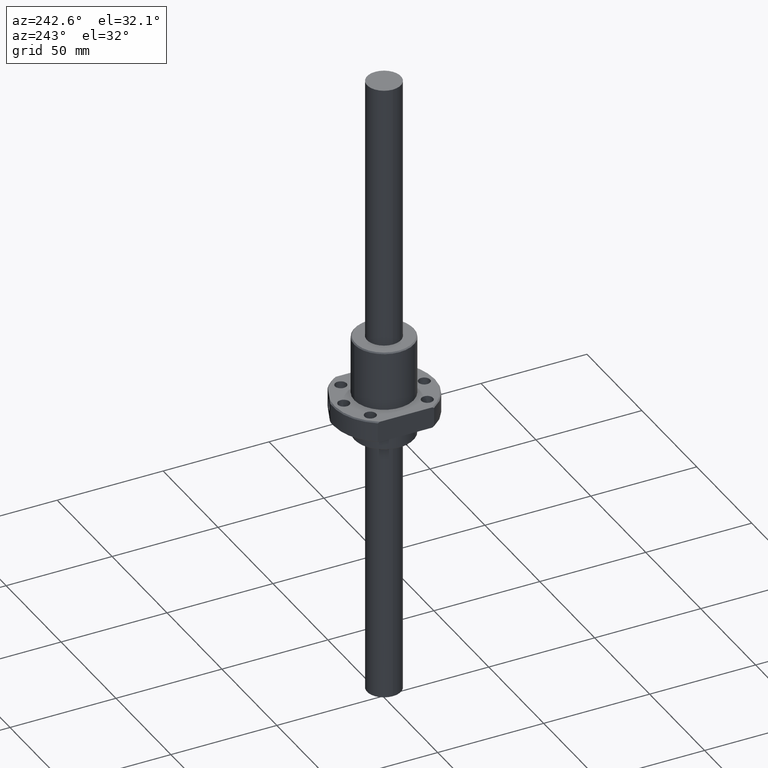
[diagram: clean part render]
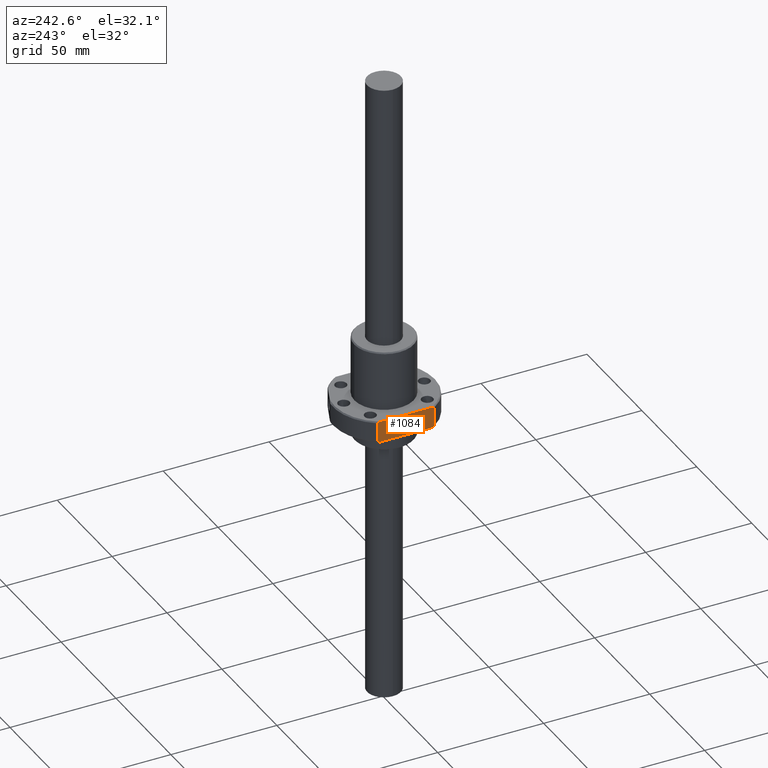
[diagram: same view with one face highlighted and labeled with its STEP entity id]
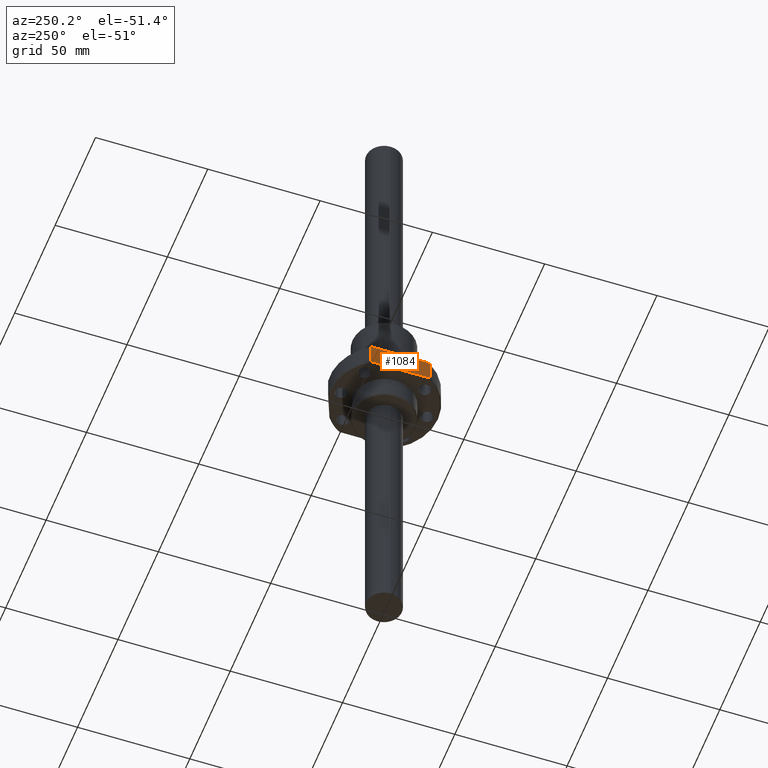
[diagram: same view with one face highlighted and labeled with its STEP entity id]
A machine part, auxiliary view. The second image highlights one B-rep face of the part: STEP entity #1084.
A second angle (auxiliary view) of the same face is appended — the face is thin or edge-on in the first view.
In plain terms, the highlighted planar face has unit normal (-1, 0, 0).
Its self-contained STEP definition (entity closure, byte-faithful):
#8 = CARTESIAN_POINT ( 'NONE',  ( 20.00000000000000000, 0.0000000000000000000, -10.00000000000000000 ) ) ;
#30 = CARTESIAN_POINT ( 'NONE',  ( 20.00000000000000000, 12.33896267925307400, -10.00000000000000500 ) ) ;
#32 = EDGE_CURVE ( 'NONE', #1040, #477, #833, .T. ) ;
#39 = DIRECTION ( 'NONE',  ( -0.0000000000000000000, -0.0000000000000000000, -1.000000000000000000 ) ) ;
#54 = CARTESIAN_POINT ( 'NONE',  ( 20.00000000000000000, 12.33896268198936000, -19.99999999856327500 ) ) ;
#77 = CARTESIAN_POINT ( 'NONE',  ( 20.00000000606479100, 13.26649915227858200, -15.00000000000000000 ) ) ;
#99 = DIRECTION ( 'NONE',  ( -0.0000000000000000000, -1.000000000000000000, -0.0000000000000000000 ) ) ;
#117 = B_SPLINE_CURVE_WITH_KNOTS ( 'NONE', 3,
 ( #235, #1030, #1791, #30 ),
 .UNSPECIFIED., .F., .F.,
 ( 4, 4 ),
 ( 2.274645919796704600E-012, 0.001053719078582877900 ),
 .UNSPECIFIED. ) ;
#133 = CARTESIAN_POINT ( 'NONE',  ( 20.00000000087938500, -12.95908056561997200, -19.66993202312919200 ) ) ;
#182 = LINE ( 'NONE', #77, #910 ) ;
#183 = EDGE_CURVE ( 'NONE', #1237, #1040, #117, .T. ) ;
#213 = ORIENTED_EDGE ( 'NONE', *, *, #1806, .T. ) ;
#229 = EDGE_CURVE ( 'NONE', #477, #950, #709, .T. ) ;
#235 = CARTESIAN_POINT ( 'NONE',  ( 20.00000000303239700, 13.26649915531293000, -10.49999999915030300 ) ) ;
#248 = VERTEX_POINT ( 'NONE', #1051 ) ;
#283 = CARTESIAN_POINT ( 'NONE',  ( 20.00000000000000000, 12.33896268198936000, -19.99999999856327500 ) ) ;
#331 = FACE_OUTER_BOUND ( 'NONE', #526, .T. ) ;
#333 = CARTESIAN_POINT ( 'NONE',  ( 20.00000000000000000, -13.26649916006705300, -19.50000000063226900 ) ) ;
#347 = DIRECTION ( 'NONE',  ( 1.000000000000000000, 0.0000000000000000000, 0.0000000000000000000 ) ) ;
#435 = CARTESIAN_POINT ( 'NONE',  ( 20.00000000000000000, -13.26649916121060700, -10.49999999988334500 ) ) ;
#477 = VERTEX_POINT ( 'NONE', #1468 ) ;
#526 = EDGE_LOOP ( 'NONE', ( #1876, #1323, #901, #1521, #558, #213, #1770, #1412 ) ) ;
#558 = ORIENTED_EDGE ( 'NONE', *, *, #229, .T. ) ;
#586 = CARTESIAN_POINT ( 'NONE',  ( 20.00000000000000000, -13.26649916100000000, -15.00000000000000000 ) ) ;
#634 = EDGE_CURVE ( 'NONE', #248, #856, #1611, .T. ) ;
#643 = VERTEX_POINT ( 'NONE', #283 ) ;
#709 = B_SPLINE_CURVE_WITH_KNOTS ( 'NONE', 3,
 ( #1904, #1497, #1357, #1152 ),
 .UNSPECIFIED., .F., .F.,
 ( 4, 4 ),
 ( 0.0000000000000000000, 0.001053719080662776000 ),
 .UNSPECIFIED. ) ;
#736 = DIRECTION ( 'NONE',  ( 0.0000000000000000000, 1.000000000000000000, 0.0000000000000000000 ) ) ;
#770 = EDGE_CURVE ( 'NONE', #643, #1591, #1907, .T. ) ;
#833 = LINE ( 'NONE', #8, #1475 ) ;
#856 = VERTEX_POINT ( 'NONE', #1043 ) ;
#884 = CARTESIAN_POINT ( 'NONE',  ( 20.00000000303239700, 13.26649915531293000, -10.49999999915030300 ) ) ;
#901 = ORIENTED_EDGE ( 'NONE', *, *, #183, .T. ) ;
#905 = CARTESIAN_POINT ( 'NONE',  ( 20.00000000303239700, 13.26649915685009000, -19.50000000000003900 ) ) ;
#910 = VECTOR ( 'NONE', #1258, 1000.000000000000000 ) ;
#950 = VERTEX_POINT ( 'NONE', #435 ) ;
#1030 = CARTESIAN_POINT ( 'NONE',  ( 20.00000000127564100, 12.95908056669486500, -10.33006797724327400 ) ) ;
#1040 = VERTEX_POINT ( 'NONE', #1382 ) ;
#1043 = CARTESIAN_POINT ( 'NONE',  ( 20.00000000000000000, -12.33896268255248300, -19.99999999826760100 ) ) ;
#1051 = CARTESIAN_POINT ( 'NONE',  ( 20.00000000000000000, -13.26649916006705300, -19.50000000063226900 ) ) ;
#1079 = CARTESIAN_POINT ( 'NONE',  ( 20.00000000000000000, -13.26649916100000000, -20.00000000000000000 ) ) ;
#1081 = LINE ( 'NONE', #586, #1324 ) ;
#1084 = ADVANCED_FACE ( 'NONE', ( #331 ), #1492, .T. ) ;
#1152 = CARTESIAN_POINT ( 'NONE',  ( 20.00000000000000000, -13.26649916121060700, -10.49999999988334500 ) ) ;
#1159 = DIRECTION ( 'NONE',  ( -0.0000000000000000000, -1.000000000000000000, -0.0000000000000000000 ) ) ;
#1167 = LINE ( 'NONE', #1363, #1267 ) ;
#1237 = VERTEX_POINT ( 'NONE', #884 ) ;
#1258 = DIRECTION ( 'NONE',  ( 0.0000000000000000000, 0.0000000000000000000, 1.000000000000000000 ) ) ;
#1267 = VECTOR ( 'NONE', #1159, 1000.000000000000000 ) ;
#1323 = ORIENTED_EDGE ( 'NONE', *, *, #1842, .T. ) ;
#1324 = VECTOR ( 'NONE', #39, 1000.000000000000000 ) ;
#1357 = CARTESIAN_POINT ( 'NONE',  ( 20.00000000000000000, -12.95908056777990500, -10.33006797855570900 ) ) ;
#1363 = CARTESIAN_POINT ( 'NONE',  ( 20.00000000000000000, 0.0000000000000000000, -20.00000000000000000 ) ) ;
#1382 = CARTESIAN_POINT ( 'NONE',  ( 20.00000000000000000, 12.33896267925307400, -10.00000000000000500 ) ) ;
#1412 = ORIENTED_EDGE ( 'NONE', *, *, #1544, .F. ) ;
#1468 = CARTESIAN_POINT ( 'NONE',  ( 20.00000000000000000, -12.33896268425371700, -10.00000000262565400 ) ) ;
#1475 = VECTOR ( 'NONE', #99, 1000.000000000000000 ) ;
#1484 = CARTESIAN_POINT ( 'NONE',  ( 20.00000000000000000, -12.33896268255248300, -19.99999999826760100 ) ) ;
#1492 = PLANE ( 'NONE',  #1504 ) ;
#1497 = CARTESIAN_POINT ( 'NONE',  ( 20.00000000162474500, -12.64996012384579900, -10.16329301458650600 ) ) ;
#1504 = AXIS2_PLACEMENT_3D ( 'NONE', #1079, #347, #736 ) ;
#1521 = ORIENTED_EDGE ( 'NONE', *, *, #32, .T. ) ;
#1544 = EDGE_CURVE ( 'NONE', #643, #856, #1167, .T. ) ;
#1591 = VERTEX_POINT ( 'NONE', #1720 ) ;
#1611 = B_SPLINE_CURVE_WITH_KNOTS ( 'NONE', 3,
 ( #333, #133, #1889, #1484 ),
 .UNSPECIFIED., .F., .F.,
 ( 4, 4 ),
 ( 0.0000000000000000000, 0.001053719082369433400 ),
 .UNSPECIFIED. ) ;
#1720 = CARTESIAN_POINT ( 'NONE',  ( 20.00000000303239700, 13.26649915685009000, -19.50000000000003900 ) ) ;
#1770 = ORIENTED_EDGE ( 'NONE', *, *, #634, .T. ) ;
#1791 = CARTESIAN_POINT ( 'NONE',  ( 20.00000000000000000, 12.64996012133619100, -10.16329301418168600 ) ) ;
#1806 = EDGE_CURVE ( 'NONE', #950, #248, #1081, .T. ) ;
#1809 = CARTESIAN_POINT ( 'NONE',  ( 20.00000000000000000, 12.64996011881121900, -19.83670698717939700 ) ) ;
#1842 = EDGE_CURVE ( 'NONE', #1591, #1237, #182, .T. ) ;
#1876 = ORIENTED_EDGE ( 'NONE', *, *, #770, .T. ) ;
#1881 = CARTESIAN_POINT ( 'NONE',  ( 20.00000000000000000, 12.95908056300933900, -19.66993202403782000 ) ) ;
#1889 = CARTESIAN_POINT ( 'NONE',  ( 20.00000000000000000, -12.64996012057737000, -19.83670698624126800 ) ) ;
#1904 = CARTESIAN_POINT ( 'NONE',  ( 20.00000000000000000, -12.33896268425371700, -10.00000000262565400 ) ) ;
#1907 = B_SPLINE_CURVE_WITH_KNOTS ( 'NONE', 3,
 ( #54, #1809, #1881, #905 ),
 .UNSPECIFIED., .F., .F.,
 ( 4, 4 ),
 ( 0.0000000000000000000, 0.001053719080181495800 ),
 .UNSPECIFIED. ) ;